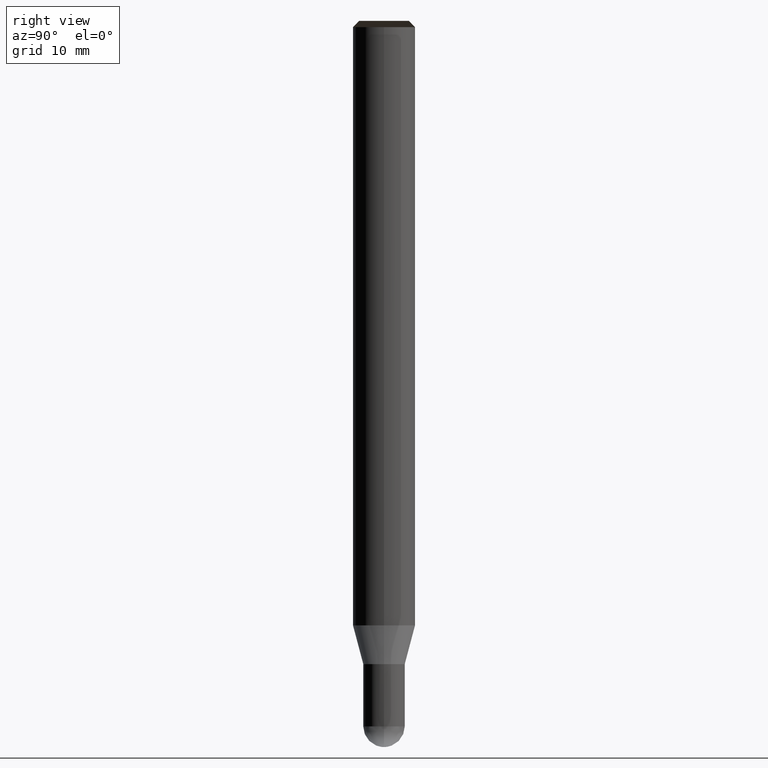
[diagram: clean part render]
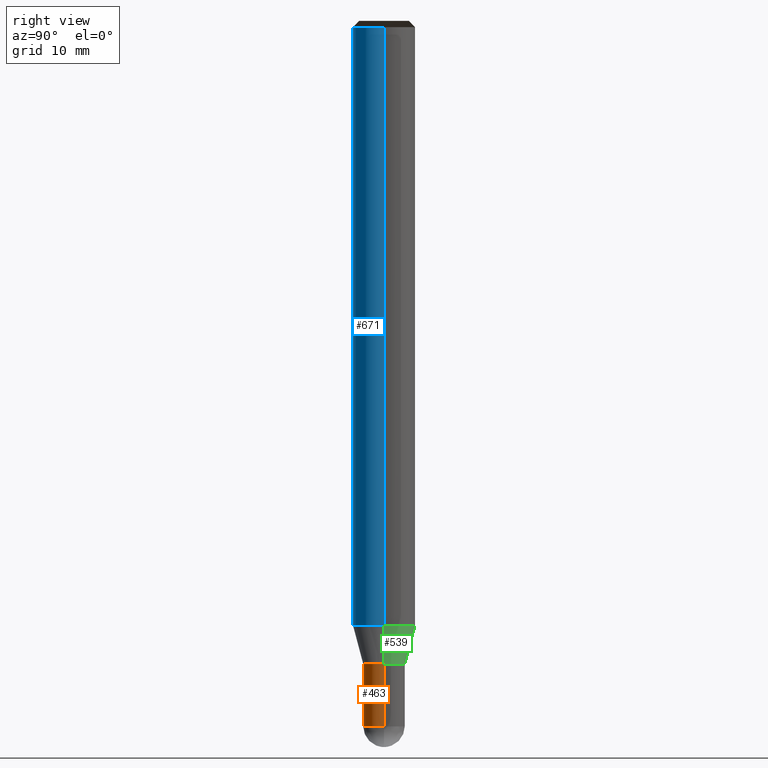
[diagram: same view with three faces highlighted in distinct colors, each labeled with its STEP entity id]
A machine part, right view with three faces highlighted in distinct colors.
Their STEP definitions:

[orange] entity #463 — the highlighted face is a freeform B-spline surface patch.
#318=CARTESIAN_POINT('',(2.0,0.0,-9.733));
#322=CARTESIAN_POINT('',(-2.0,0.0,-9.733));
#323=CARTESIAN_POINT('',(2.0,0.0,-3.733));
#327=CARTESIAN_POINT('',(-2.0,0.0,-3.733));
#332=CARTESIAN_POINT('',(-2.0,-2.0,-9.733));
#333=CARTESIAN_POINT('',(0.0,-2.0,-9.733));
#334=CARTESIAN_POINT('',(2.0,-2.0,-9.733));
#335=CARTESIAN_POINT('',(-2.0,-2.0,-3.733));
#336=CARTESIAN_POINT('',(0.0,-2.0,-3.733));
#337=CARTESIAN_POINT('',(2.0,-2.0,-3.733));
#444=(
BOUNDED_SURFACE()
B_SPLINE_SURFACE(1,2,(
(#322,#332,#333,#334,#318),
(#327,#335,#336,#337,#323)
), .UNSPECIFIED.,.F.,.F.,.F.)
B_SPLINE_SURFACE_WITH_KNOTS((2,2),(3,2,3),(
0.0,1.0),(
0.0,0.5,1.0), .UNSPECIFIED.)
GEOMETRIC_REPRESENTATION_ITEM()
RATIONAL_B_SPLINE_SURFACE(((1.0,0.707106781187,1.0,0.707106781187,1.0),
(1.0,0.707106781187,1.0,0.707106781187,1.0)
))
REPRESENTATION_ITEM('')
SURFACE()
);
#445=(
BOUNDED_CURVE()
B_SPLINE_CURVE(1,(#327,#322),.UNSPECIFIED.,.F.,.F.)
B_SPLINE_CURVE_WITH_KNOTS((2,2),
(0.0,1.0),.UNSPECIFIED.)
CURVE()
GEOMETRIC_REPRESENTATION_ITEM()
RATIONAL_B_SPLINE_CURVE((1.0,1.0))
REPRESENTATION_ITEM('')
);
#446=(
BOUNDED_CURVE()
B_SPLINE_CURVE(2,(#322,#332,#333,#334,#318),.UNSPECIFIED.,.F.,.F.)
B_SPLINE_CURVE_WITH_KNOTS((3,2,3),
(0.0,0.5,1.0),.UNSPECIFIED.)
CURVE()
GEOMETRIC_REPRESENTATION_ITEM()
RATIONAL_B_SPLINE_CURVE((1.0,0.707106781187,1.0,0.707106781187,1.0))
REPRESENTATION_ITEM('')
);
#447=(
BOUNDED_CURVE()
B_SPLINE_CURVE(1,(#318,#323),.UNSPECIFIED.,.F.,.F.)
B_SPLINE_CURVE_WITH_KNOTS((2,2),
(0.0,1.0),.UNSPECIFIED.)
CURVE()
GEOMETRIC_REPRESENTATION_ITEM()
RATIONAL_B_SPLINE_CURVE((1.0,1.0))
REPRESENTATION_ITEM('')
);
#448=(
BOUNDED_CURVE()
B_SPLINE_CURVE(2,(#323,#337,#336,#335,#327),.UNSPECIFIED.,.F.,.F.)
B_SPLINE_CURVE_WITH_KNOTS((3,2,3),
(0.0,0.5,1.0),.UNSPECIFIED.)
CURVE()
GEOMETRIC_REPRESENTATION_ITEM()
RATIONAL_B_SPLINE_CURVE((1.0,0.707106781187,1.0,0.707106781187,1.0))
REPRESENTATION_ITEM('')
);
#449=VERTEX_POINT('',#318);
#450=VERTEX_POINT('',#322);
#451=VERTEX_POINT('',#323);
#452=VERTEX_POINT('',#327);
#453=EDGE_CURVE('',#452,#450,#445,.T.);
#454=EDGE_CURVE('',#450,#449,#446,.T.);
#455=EDGE_CURVE('',#449,#451,#447,.T.);
#456=EDGE_CURVE('',#451,#452,#448,.T.);
#457=ORIENTED_EDGE('',*,*,#453,.T.);
#458=ORIENTED_EDGE('',*,*,#454,.T.);
#459=ORIENTED_EDGE('',*,*,#455,.T.);
#460=ORIENTED_EDGE('',*,*,#456,.T.);
#461=EDGE_LOOP('',(#457,#458,#459,#460));
#462=FACE_OUTER_BOUND('',#461,.T.);
#463=ADVANCED_FACE('',(#462),#444,.T.);

[blue] entity #671 — the highlighted face is a freeform B-spline surface patch.
#343=CARTESIAN_POINT('',(3.0,0.0,-0.0));
#347=CARTESIAN_POINT('',(-3.0,0.0,-0.0));
#348=CARTESIAN_POINT('',(3.0,0.0,57.667));
#352=CARTESIAN_POINT('',(-3.0,0.0,57.667));
#362=CARTESIAN_POINT('',(-3.0,-3.0,-0.0));
#363=CARTESIAN_POINT('',(0.0,-3.0,-0.0));
#364=CARTESIAN_POINT('',(3.0,-3.0,-0.0));
#365=CARTESIAN_POINT('',(-3.0,-3.0,57.667));
#366=CARTESIAN_POINT('',(0.0,-3.0,57.667));
#367=CARTESIAN_POINT('',(3.0,-3.0,57.667));
#652=(
BOUNDED_SURFACE()
B_SPLINE_SURFACE(1,2,(
(#347,#362,#363,#364,#343),
(#352,#365,#366,#367,#348)
), .UNSPECIFIED.,.F.,.F.,.F.)
B_SPLINE_SURFACE_WITH_KNOTS((2,2),(3,2,3),(
0.0,1.0),(
0.0,0.5,1.0), .UNSPECIFIED.)
GEOMETRIC_REPRESENTATION_ITEM()
RATIONAL_B_SPLINE_SURFACE(((1.0,0.707106781187,1.0,0.707106781187,1.0),
(1.0,0.707106781187,1.0,0.707106781187,1.0)
))
REPRESENTATION_ITEM('')
SURFACE()
);
#653=(
BOUNDED_CURVE()
B_SPLINE_CURVE(1,(#352,#347),.UNSPECIFIED.,.F.,.F.)
B_SPLINE_CURVE_WITH_KNOTS((2,2),
(0.0,1.0),.UNSPECIFIED.)
CURVE()
GEOMETRIC_REPRESENTATION_ITEM()
RATIONAL_B_SPLINE_CURVE((1.0,1.0))
REPRESENTATION_ITEM('')
);
#654=(
BOUNDED_CURVE()
B_SPLINE_CURVE(2,(#347,#362,#363,#364,#343),.UNSPECIFIED.,.F.,.F.)
B_SPLINE_CURVE_WITH_KNOTS((3,2,3),
(0.0,0.5,1.0),.UNSPECIFIED.)
CURVE()
GEOMETRIC_REPRESENTATION_ITEM()
RATIONAL_B_SPLINE_CURVE((1.0,0.707106781187,1.0,0.707106781187,1.0))
REPRESENTATION_ITEM('')
);
#655=(
BOUNDED_CURVE()
B_SPLINE_CURVE(1,(#343,#348),.UNSPECIFIED.,.F.,.F.)
B_SPLINE_CURVE_WITH_KNOTS((2,2),
(0.0,1.0),.UNSPECIFIED.)
CURVE()
GEOMETRIC_REPRESENTATION_ITEM()
RATIONAL_B_SPLINE_CURVE((1.0,1.0))
REPRESENTATION_ITEM('')
);
#656=(
BOUNDED_CURVE()
B_SPLINE_CURVE(2,(#348,#367,#366,#365,#352),.UNSPECIFIED.,.F.,.F.)
B_SPLINE_CURVE_WITH_KNOTS((3,2,3),
(0.0,0.5,1.0),.UNSPECIFIED.)
CURVE()
GEOMETRIC_REPRESENTATION_ITEM()
RATIONAL_B_SPLINE_CURVE((1.0,0.707106781187,1.0,0.707106781187,1.0))
REPRESENTATION_ITEM('')
);
#657=VERTEX_POINT('',#343);
#658=VERTEX_POINT('',#347);
#659=VERTEX_POINT('',#348);
#660=VERTEX_POINT('',#352);
#661=EDGE_CURVE('',#660,#658,#653,.T.);
#662=EDGE_CURVE('',#658,#657,#654,.T.);
#663=EDGE_CURVE('',#657,#659,#655,.T.);
#664=EDGE_CURVE('',#659,#660,#656,.T.);
#665=ORIENTED_EDGE('',*,*,#661,.T.);
#666=ORIENTED_EDGE('',*,*,#662,.T.);
#667=ORIENTED_EDGE('',*,*,#663,.T.);
#668=ORIENTED_EDGE('',*,*,#664,.T.);
#669=EDGE_LOOP('',(#665,#666,#667,#668));
#670=FACE_OUTER_BOUND('',#669,.T.);
#671=ADVANCED_FACE('',(#670),#652,.T.);

[green] entity #539 — the highlighted face is a freeform B-spline surface patch.
#338=CARTESIAN_POINT('',(2.0,0.0,-3.732050807569));
#339=CARTESIAN_POINT('',(2.0,2.0,-3.732050807569));
#340=CARTESIAN_POINT('',(0.0,2.0,-3.732050807569));
#341=CARTESIAN_POINT('',(-2.0,2.0,-3.732050807569));
#342=CARTESIAN_POINT('',(-2.0,0.0,-3.732050807569));
#343=CARTESIAN_POINT('',(3.0,0.0,-0.0));
#344=CARTESIAN_POINT('',(3.0,3.0,-0.0));
#345=CARTESIAN_POINT('',(0.0,3.0,-0.0));
#346=CARTESIAN_POINT('',(-3.0,3.0,-0.0));
#347=CARTESIAN_POINT('',(-3.0,0.0,-0.0));
#520=(
BOUNDED_SURFACE()
B_SPLINE_SURFACE(1,2,(
(#338,#339,#340,#341,#342),
(#343,#344,#345,#346,#347)
), .UNSPECIFIED.,.F.,.F.,.F.)
B_SPLINE_SURFACE_WITH_KNOTS((2,2),(3,2,3),(
0.0,1.0),(
0.0,0.5,1.0), .UNSPECIFIED.)
GEOMETRIC_REPRESENTATION_ITEM()
RATIONAL_B_SPLINE_SURFACE(((1.0,0.707106781187,1.0,0.707106781187,1.0),
(1.0,0.707106781187,1.0,0.707106781187,1.0)
))
REPRESENTATION_ITEM('')
SURFACE()
);
#521=(
BOUNDED_CURVE()
B_SPLINE_CURVE(2,(#343,#344,#345,#346,#347),.UNSPECIFIED.,.F.,.F.)
B_SPLINE_CURVE_WITH_KNOTS((3,2,3),
(0.0,0.5,1.0),.UNSPECIFIED.)
CURVE()
GEOMETRIC_REPRESENTATION_ITEM()
RATIONAL_B_SPLINE_CURVE((1.0,0.707106781187,1.0,0.707106781187,1.0))
REPRESENTATION_ITEM('')
);
#522=(
BOUNDED_CURVE()
B_SPLINE_CURVE(1,(#347,#342),.UNSPECIFIED.,.F.,.F.)
B_SPLINE_CURVE_WITH_KNOTS((2,2),
(0.0,1.0),.UNSPECIFIED.)
CURVE()
GEOMETRIC_REPRESENTATION_ITEM()
RATIONAL_B_SPLINE_CURVE((1.0,1.0))
REPRESENTATION_ITEM('')
);
#523=(
BOUNDED_CURVE()
B_SPLINE_CURVE(2,(#342,#341,#340,#339,#338),.UNSPECIFIED.,.F.,.F.)
B_SPLINE_CURVE_WITH_KNOTS((3,2,3),
(0.0,0.5,1.0),.UNSPECIFIED.)
CURVE()
GEOMETRIC_REPRESENTATION_ITEM()
RATIONAL_B_SPLINE_CURVE((1.0,0.707106781187,1.0,0.707106781187,1.0))
REPRESENTATION_ITEM('')
);
#524=(
BOUNDED_CURVE()
B_SPLINE_CURVE(1,(#338,#343),.UNSPECIFIED.,.F.,.F.)
B_SPLINE_CURVE_WITH_KNOTS((2,2),
(0.0,1.0),.UNSPECIFIED.)
CURVE()
GEOMETRIC_REPRESENTATION_ITEM()
RATIONAL_B_SPLINE_CURVE((1.0,1.0))
REPRESENTATION_ITEM('')
);
#525=VERTEX_POINT('',#338);
#526=VERTEX_POINT('',#342);
#527=VERTEX_POINT('',#343);
#528=VERTEX_POINT('',#347);
#529=EDGE_CURVE('',#527,#528,#521,.T.);
#530=EDGE_CURVE('',#528,#526,#522,.T.);
#531=EDGE_CURVE('',#526,#525,#523,.T.);
#532=EDGE_CURVE('',#525,#527,#524,.T.);
#533=ORIENTED_EDGE('',*,*,#529,.T.);
#534=ORIENTED_EDGE('',*,*,#530,.T.);
#535=ORIENTED_EDGE('',*,*,#531,.T.);
#536=ORIENTED_EDGE('',*,*,#532,.T.);
#537=EDGE_LOOP('',(#533,#534,#535,#536));
#538=FACE_OUTER_BOUND('',#537,.T.);
#539=ADVANCED_FACE('',(#538),#520,.T.);